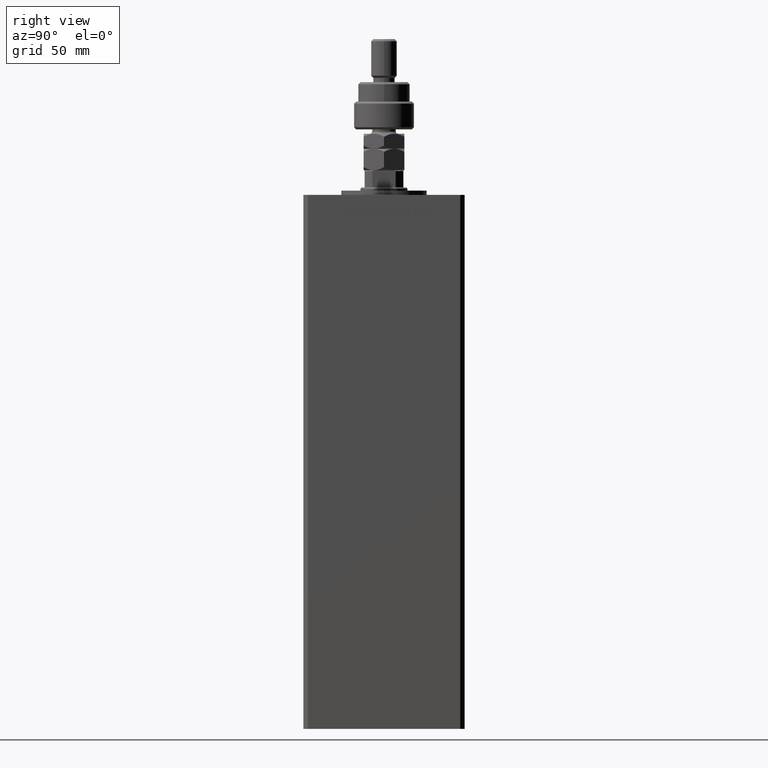
[diagram: clean part render]
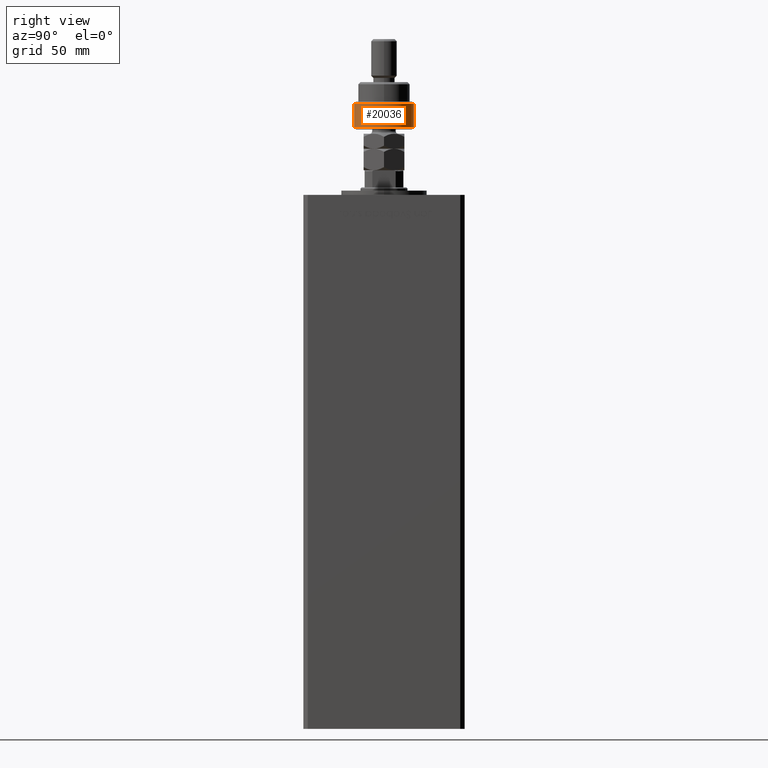
[diagram: same view with one face highlighted and labeled with its STEP entity id]
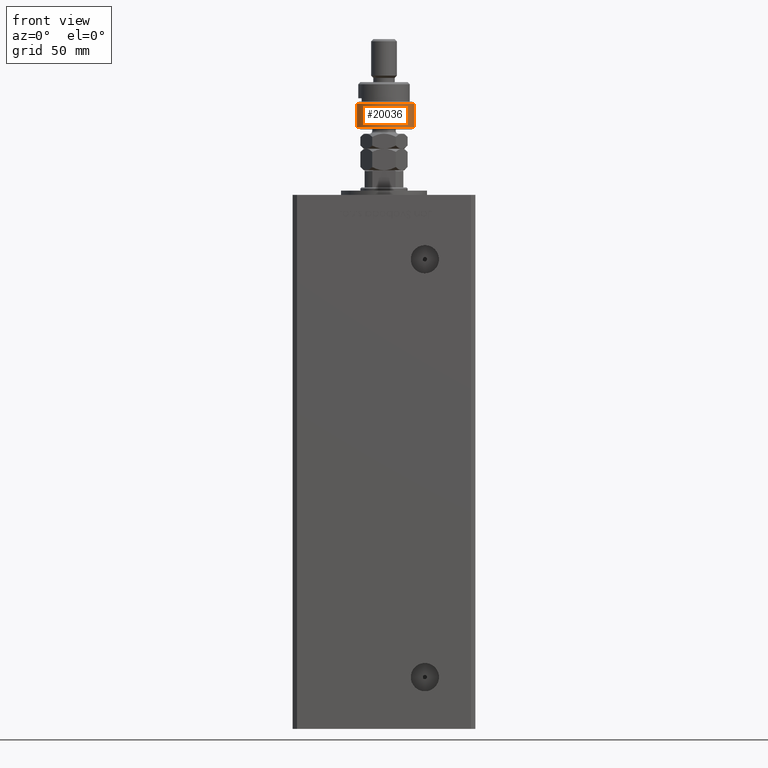
[diagram: same view with one face highlighted and labeled with its STEP entity id]
A machine part, right view. The second image highlights one B-rep face of the part: STEP entity #20036.
A second angle (front view) of the same face is appended — the face is thin or edge-on in the first view.
In plain terms, the highlighted cylindrical surface (edge-blend (fillet) strip) has radius 14 mm, axis along (-0, -0, -1).
Its self-contained STEP definition (entity closure, byte-faithful):
#1014 = DIRECTION ( 'NONE',  ( 1.000000000000000000, 0.000000000000000000, 0.000000000000000000 ) ) ;
#4841 = VERTEX_POINT ( 'NONE', #19547 ) ;
#6582 = CARTESIAN_POINT ( 'NONE',  ( -12.64911064067351809, -5.999999999999999112, 1.000000000000021760 ) ) ;
#7108 = CARTESIAN_POINT ( 'NONE',  ( -12.64911064067351809, 6.000000000000000000, 12.00000000000002842 ) ) ;
#7159 = LINE ( 'NONE', #49486, #31087 ) ;
#7266 = CIRCLE ( 'NONE', #33964, 14.00000000000000000 ) ;
#7834 = VERTEX_POINT ( 'NONE', #6582 ) ;
#8454 = DIRECTION ( 'NONE',  ( -0.000000000000000000, -0.000000000000000000, -1.000000000000000000 ) ) ;
#9311 = DIRECTION ( 'NONE',  ( 0.000000000000000000, 0.000000000000000000, -1.000000000000000000 ) ) ;
#10514 = DIRECTION ( 'NONE',  ( 1.000000000000000000, 0.000000000000000000, 0.000000000000000000 ) ) ;
#14696 = CARTESIAN_POINT ( 'NONE',  ( 0.000000000000000000, 0.000000000000000000, 1.000000000000018208 ) ) ;
#15285 = EDGE_CURVE ( 'NONE', #4841, #16447, #53352, .T. ) ;
#16447 = VERTEX_POINT ( 'NONE', #39082 ) ;
#18332 = CARTESIAN_POINT ( 'NONE',  ( -12.64911064067351809, -5.999999999999999112, 14.50000000000000000 ) ) ;
#18569 = EDGE_LOOP ( 'NONE', ( #22586, #48237, #46972, #36528, #35069 ) ) ;
#19547 = CARTESIAN_POINT ( 'NONE',  ( 14.00000000000000000, 0.000000000000000000, 1.000000000000018208 ) ) ;
#20036 = ADVANCED_FACE ( 'NONE', ( #48421 ), #22528, .T. ) ;
#21528 = AXIS2_PLACEMENT_3D ( 'NONE', #39153, #27436, #1014 ) ;
#22528 = CYLINDRICAL_SURFACE ( 'NONE', #41395, 14.00000000000000000 ) ;
#22586 = ORIENTED_EDGE ( 'NONE', *, *, #24358, .F. ) ;
#24209 = CARTESIAN_POINT ( 'NONE',  ( -12.64911064067351809, -5.999999999999999112, 12.00000000000002842 ) ) ;
#24358 = EDGE_CURVE ( 'NONE', #46684, #16447, #7159, .T. ) ;
#27436 = DIRECTION ( 'NONE',  ( -0.000000000000000000, -0.000000000000000000, 1.000000000000000000 ) ) ;
#27608 = AXIS2_PLACEMENT_3D ( 'NONE', #14696, #48660, #10514 ) ;
#30835 = EDGE_CURVE ( 'NONE', #46684, #53225, #7266, .T. ) ;
#31087 = VECTOR ( 'NONE', #8454, 1000.000000000000000 ) ;
#31445 = CARTESIAN_POINT ( 'NONE',  ( 0.000000000000000000, 0.000000000000000000, 13.00000000000000000 ) ) ;
#31934 = EDGE_CURVE ( 'NONE', #7834, #4841, #49137, .T. ) ;
#33964 = AXIS2_PLACEMENT_3D ( 'NONE', #39929, #9311, #34916 ) ;
#34916 = DIRECTION ( 'NONE',  ( 1.000000000000000000, 0.000000000000000000, 0.000000000000000000 ) ) ;
#35069 = ORIENTED_EDGE ( 'NONE', *, *, #15285, .T. ) ;
#36528 = ORIENTED_EDGE ( 'NONE', *, *, #31934, .T. ) ;
#39082 = CARTESIAN_POINT ( 'NONE',  ( -12.64911064067351809, 6.000000000000000000, 1.000000000000021760 ) ) ;
#39153 = CARTESIAN_POINT ( 'NONE',  ( 0.000000000000000000, 0.000000000000000000, 1.000000000000018208 ) ) ;
#39929 = CARTESIAN_POINT ( 'NONE',  ( 0.000000000000000000, 0.000000000000000000, 12.00000000000002842 ) ) ;
#40073 = DIRECTION ( 'NONE',  ( -1.000000000000000000, 0.000000000000000000, 0.000000000000000000 ) ) ;
#41395 = AXIS2_PLACEMENT_3D ( 'NONE', #31445, #44514, #40073 ) ;
#43104 = DIRECTION ( 'NONE',  ( -0.000000000000000000, -0.000000000000000000, -1.000000000000000000 ) ) ;
#44514 = DIRECTION ( 'NONE',  ( -0.000000000000000000, -0.000000000000000000, -1.000000000000000000 ) ) ;
#46684 = VERTEX_POINT ( 'NONE', #7108 ) ;
#46972 = ORIENTED_EDGE ( 'NONE', *, *, #51684, .T. ) ;
#47300 = LINE ( 'NONE', #18332, #48600 ) ;
#48237 = ORIENTED_EDGE ( 'NONE', *, *, #30835, .T. ) ;
#48421 = FACE_OUTER_BOUND ( 'NONE', #18569, .T. ) ;
#48600 = VECTOR ( 'NONE', #43104, 1000.000000000000000 ) ;
#48660 = DIRECTION ( 'NONE',  ( -0.000000000000000000, -0.000000000000000000, 1.000000000000000000 ) ) ;
#49137 = CIRCLE ( 'NONE', #21528, 14.00000000000000000 ) ;
#49486 = CARTESIAN_POINT ( 'NONE',  ( -12.64911064067351809, 6.000000000000000000, 14.50000000000000000 ) ) ;
#51684 = EDGE_CURVE ( 'NONE', #53225, #7834, #47300, .T. ) ;
#53225 = VERTEX_POINT ( 'NONE', #24209 ) ;
#53352 = CIRCLE ( 'NONE', #27608, 14.00000000000000000 ) ;